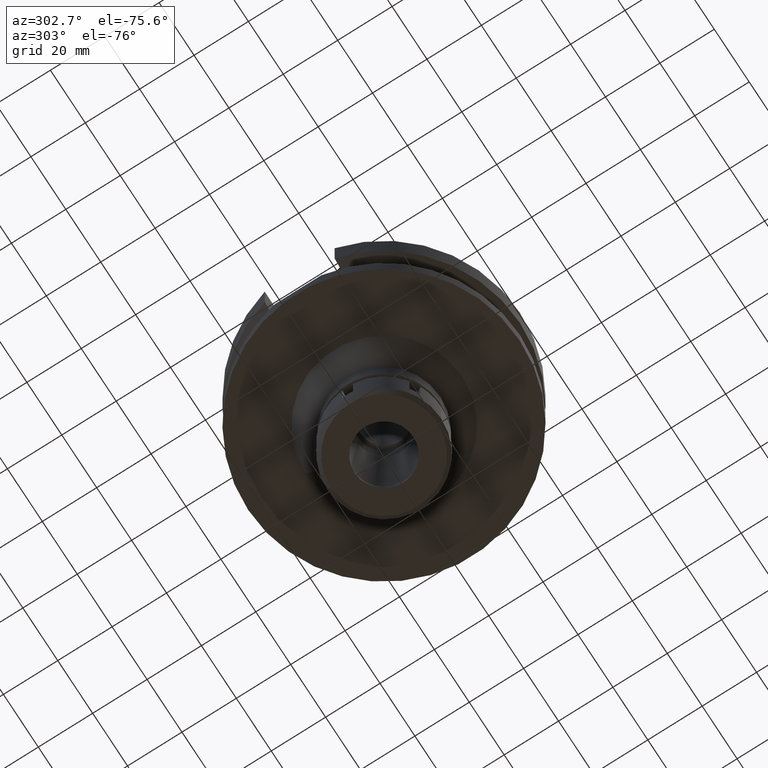
[diagram: clean part render]
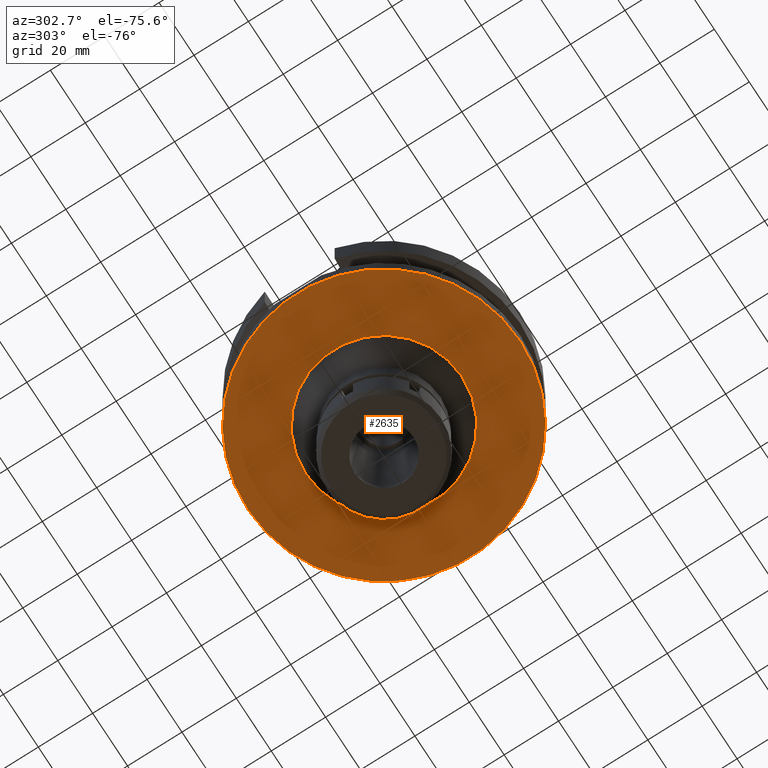
[diagram: same view with one face highlighted and labeled with its STEP entity id]
A machine part, auxiliary view. The second image highlights one B-rep face of the part: STEP entity #2635.
In plain terms, the highlighted planar face has unit normal (0, 0, -1).
Its self-contained STEP definition (entity closure, byte-faithful):
#32 = AXIS2_PLACEMENT_3D ( 'NONE', #1839, #2934, #2410 ) ;
#55 = EDGE_CURVE ( 'NONE', #71, #3336, #1508, .T. ) ;
#71 = VERTEX_POINT ( 'NONE', #1456 ) ;
#79 = AXIS2_PLACEMENT_3D ( 'NONE', #2414, #3509, #2969 ) ;
#210 = CARTESIAN_POINT ( 'NONE',  ( 0.0000000000000000000, 28.75000000000000000, -38.00000000000000000 ) ) ;
#383 = DIRECTION ( 'NONE',  ( 0.0000000000000000000, 0.0000000000000000000, -1.000000000000000000 ) ) ;
#422 = CARTESIAN_POINT ( 'NONE',  ( 0.0000000000000000000, 0.0000000000000000000, -38.00000000000000000 ) ) ;
#458 = CIRCLE ( 'NONE', #32, 50.00000000000000000 ) ;
#472 = ORIENTED_EDGE ( 'NONE', *, *, #1813, .F. ) ;
#626 = AXIS2_PLACEMENT_3D ( 'NONE', #3076, #383, #2536 ) ;
#638 = DIRECTION ( 'NONE',  ( 0.0000000000000000000, -1.000000000000000000, 0.0000000000000000000 ) ) ;
#852 = CARTESIAN_POINT ( 'NONE',  ( 0.0000000000000000000, 0.0000000000000000000, -38.00000000000000000 ) ) ;
#878 = CARTESIAN_POINT ( 'NONE',  ( 0.0000000000000000000, 50.00000000000000000, -38.00000000000000000 ) ) ;
#891 = DIRECTION ( 'NONE',  ( 0.0000000000000000000, 0.0000000000000000000, -1.000000000000000000 ) ) ;
#907 = CIRCLE ( 'NONE', #2929, 28.75000000000000000 ) ;
#1038 = EDGE_CURVE ( 'NONE', #3336, #71, #907, .T. ) ;
#1089 = AXIS2_PLACEMENT_3D ( 'NONE', #852, #891, #638 ) ;
#1146 = EDGE_LOOP ( 'NONE', ( #2939, #2691 ) ) ;
#1275 = DIRECTION ( 'NONE',  ( 0.0000000000000000000, 1.000000000000000000, 0.0000000000000000000 ) ) ;
#1317 = VERTEX_POINT ( 'NONE', #878 ) ;
#1436 = FACE_OUTER_BOUND ( 'NONE', #3323, .T. ) ;
#1456 = CARTESIAN_POINT ( 'NONE',  ( 0.0000000000000000000, -28.75000000000000000, -38.00000000000000000 ) ) ;
#1508 = CIRCLE ( 'NONE', #1089, 28.75000000000000000 ) ;
#1781 = DIRECTION ( 'NONE',  ( 0.0000000000000000000, 0.0000000000000000000, -1.000000000000000000 ) ) ;
#1813 = EDGE_CURVE ( 'NONE', #2866, #1317, #3346, .T. ) ;
#1828 = CARTESIAN_POINT ( 'NONE',  ( 0.0000000000000000000, -50.00000000000000000, -38.00000000000000000 ) ) ;
#1839 = CARTESIAN_POINT ( 'NONE',  ( 0.0000000000000000000, 2.574697430526999748E-14, -38.00000000000000000 ) ) ;
#1984 = FACE_BOUND ( 'NONE', #1146, .T. ) ;
#2330 = PLANE ( 'NONE',  #626 ) ;
#2410 = DIRECTION ( 'NONE',  ( 0.0000000000000000000, 1.000000000000000000, 0.0000000000000000000 ) ) ;
#2414 = CARTESIAN_POINT ( 'NONE',  ( 0.0000000000000000000, 2.574697430526999748E-14, -38.00000000000000000 ) ) ;
#2536 = DIRECTION ( 'NONE',  ( 0.0000000000000000000, -1.000000000000000000, 0.0000000000000000000 ) ) ;
#2635 = ADVANCED_FACE ( 'NONE', ( #1436, #1984 ), #2330, .T. ) ;
#2691 = ORIENTED_EDGE ( 'NONE', *, *, #55, .F. ) ;
#2866 = VERTEX_POINT ( 'NONE', #1828 ) ;
#2929 = AXIS2_PLACEMENT_3D ( 'NONE', #422, #1781, #1275 ) ;
#2934 = DIRECTION ( 'NONE',  ( 0.0000000000000000000, 0.0000000000000000000, 1.000000000000000000 ) ) ;
#2939 = ORIENTED_EDGE ( 'NONE', *, *, #1038, .F. ) ;
#2969 = DIRECTION ( 'NONE',  ( 0.0000000000000000000, -1.000000000000000000, 0.0000000000000000000 ) ) ;
#3042 = ORIENTED_EDGE ( 'NONE', *, *, #3431, .F. ) ;
#3076 = CARTESIAN_POINT ( 'NONE',  ( 0.0000000000000000000, 0.0000000000000000000, -38.00000000000000000 ) ) ;
#3323 = EDGE_LOOP ( 'NONE', ( #3042, #472 ) ) ;
#3336 = VERTEX_POINT ( 'NONE', #210 ) ;
#3346 = CIRCLE ( 'NONE', #79, 50.00000000000000000 ) ;
#3431 = EDGE_CURVE ( 'NONE', #1317, #2866, #458, .T. ) ;
#3509 = DIRECTION ( 'NONE',  ( 0.0000000000000000000, 0.0000000000000000000, 1.000000000000000000 ) ) ;